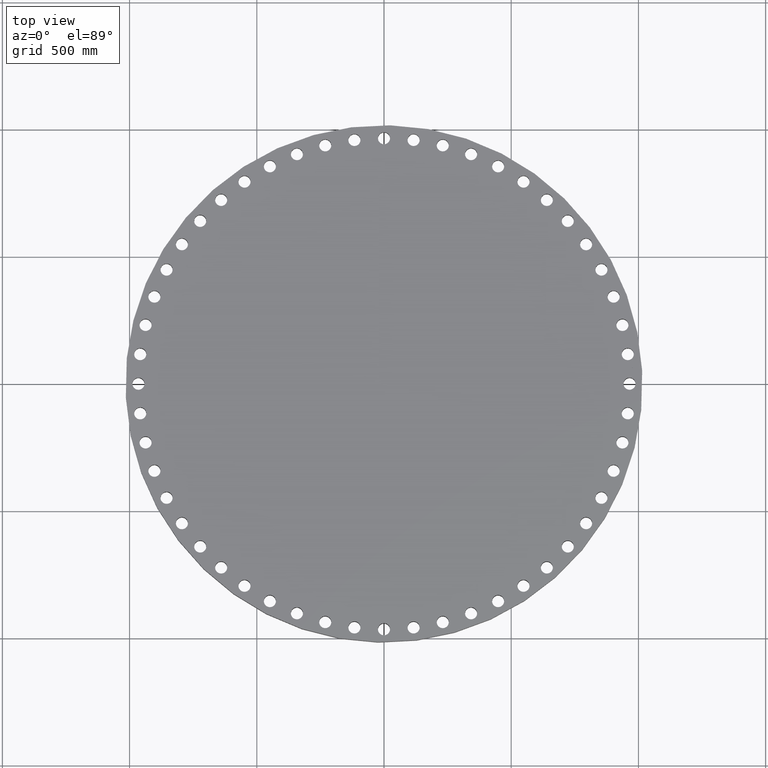
[diagram: clean part render]
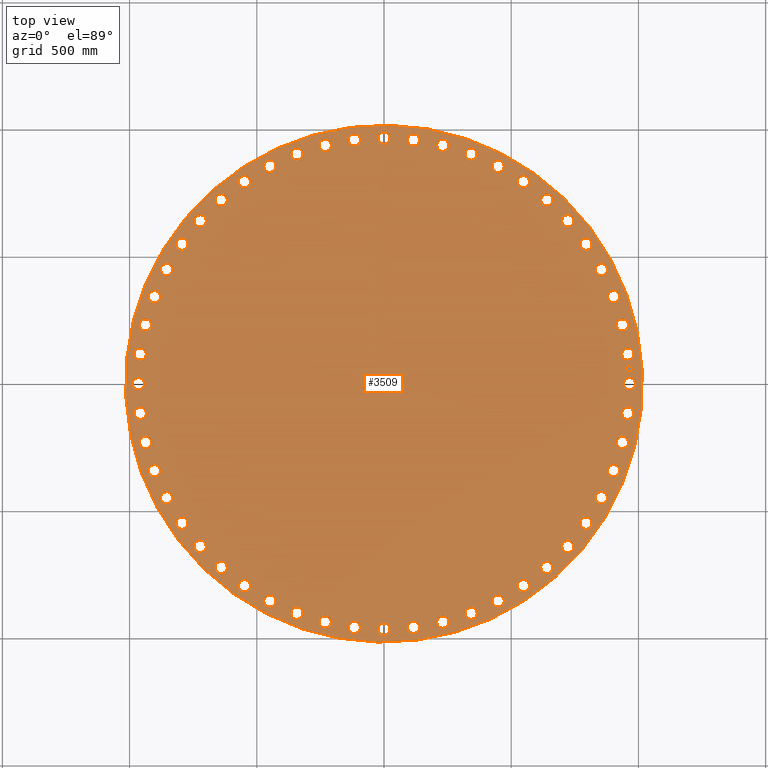
[diagram: same view with one face highlighted and labeled with its STEP entity id]
A machine part, top view. The second image highlights one B-rep face of the part: STEP entity #3509.
In plain terms, the highlighted planar face has unit normal (0, 0, 1).
Its self-contained STEP definition (entity closure, byte-faithful):
#65=AXIS2_PLACEMENT_3D('Circle Axis2P3D',#63,#64,$) ;
#82=AXIS2_PLACEMENT_3D('Circle Axis2P3D',#80,#81,$) ;
#108=AXIS2_PLACEMENT_3D('Circle Axis2P3D',#106,#107,$) ;
#134=AXIS2_PLACEMENT_3D('Circle Axis2P3D',#132,#133,$) ;
#1102=AXIS2_PLACEMENT_3D('Circle Axis2P3D',#1100,#1101,$) ;
#1114=AXIS2_PLACEMENT_3D('Circle Axis2P3D',#1112,#1113,$) ;
#1145=AXIS2_PLACEMENT_3D('Circle Axis2P3D',#1143,#1144,$) ;
#1157=AXIS2_PLACEMENT_3D('Circle Axis2P3D',#1155,#1156,$) ;
#1188=AXIS2_PLACEMENT_3D('Circle Axis2P3D',#1186,#1187,$) ;
#1200=AXIS2_PLACEMENT_3D('Circle Axis2P3D',#1198,#1199,$) ;
#1231=AXIS2_PLACEMENT_3D('Circle Axis2P3D',#1229,#1230,$) ;
#1243=AXIS2_PLACEMENT_3D('Circle Axis2P3D',#1241,#1242,$) ;
#1274=AXIS2_PLACEMENT_3D('Circle Axis2P3D',#1272,#1273,$) ;
#1286=AXIS2_PLACEMENT_3D('Circle Axis2P3D',#1284,#1285,$) ;
#1317=AXIS2_PLACEMENT_3D('Circle Axis2P3D',#1315,#1316,$) ;
#1329=AXIS2_PLACEMENT_3D('Circle Axis2P3D',#1327,#1328,$) ;
#1360=AXIS2_PLACEMENT_3D('Circle Axis2P3D',#1358,#1359,$) ;
#1372=AXIS2_PLACEMENT_3D('Circle Axis2P3D',#1370,#1371,$) ;
#1403=AXIS2_PLACEMENT_3D('Circle Axis2P3D',#1401,#1402,$) ;
#1415=AXIS2_PLACEMENT_3D('Circle Axis2P3D',#1413,#1414,$) ;
#1446=AXIS2_PLACEMENT_3D('Circle Axis2P3D',#1444,#1445,$) ;
#1458=AXIS2_PLACEMENT_3D('Circle Axis2P3D',#1456,#1457,$) ;
#1489=AXIS2_PLACEMENT_3D('Circle Axis2P3D',#1487,#1488,$) ;
#1501=AXIS2_PLACEMENT_3D('Circle Axis2P3D',#1499,#1500,$) ;
#1532=AXIS2_PLACEMENT_3D('Circle Axis2P3D',#1530,#1531,$) ;
#1544=AXIS2_PLACEMENT_3D('Circle Axis2P3D',#1542,#1543,$) ;
#1575=AXIS2_PLACEMENT_3D('Circle Axis2P3D',#1573,#1574,$) ;
#1587=AXIS2_PLACEMENT_3D('Circle Axis2P3D',#1585,#1586,$) ;
#1618=AXIS2_PLACEMENT_3D('Circle Axis2P3D',#1616,#1617,$) ;
#1630=AXIS2_PLACEMENT_3D('Circle Axis2P3D',#1628,#1629,$) ;
#1661=AXIS2_PLACEMENT_3D('Circle Axis2P3D',#1659,#1660,$) ;
#1673=AXIS2_PLACEMENT_3D('Circle Axis2P3D',#1671,#1672,$) ;
#1704=AXIS2_PLACEMENT_3D('Circle Axis2P3D',#1702,#1703,$) ;
#1716=AXIS2_PLACEMENT_3D('Circle Axis2P3D',#1714,#1715,$) ;
#1747=AXIS2_PLACEMENT_3D('Circle Axis2P3D',#1745,#1746,$) ;
#1759=AXIS2_PLACEMENT_3D('Circle Axis2P3D',#1757,#1758,$) ;
#1790=AXIS2_PLACEMENT_3D('Circle Axis2P3D',#1788,#1789,$) ;
#1802=AXIS2_PLACEMENT_3D('Circle Axis2P3D',#1800,#1801,$) ;
#1833=AXIS2_PLACEMENT_3D('Circle Axis2P3D',#1831,#1832,$) ;
#1845=AXIS2_PLACEMENT_3D('Circle Axis2P3D',#1843,#1844,$) ;
#1876=AXIS2_PLACEMENT_3D('Circle Axis2P3D',#1874,#1875,$) ;
#1888=AXIS2_PLACEMENT_3D('Circle Axis2P3D',#1886,#1887,$) ;
#1919=AXIS2_PLACEMENT_3D('Circle Axis2P3D',#1917,#1918,$) ;
#1931=AXIS2_PLACEMENT_3D('Circle Axis2P3D',#1929,#1930,$) ;
#1962=AXIS2_PLACEMENT_3D('Circle Axis2P3D',#1960,#1961,$) ;
#1974=AXIS2_PLACEMENT_3D('Circle Axis2P3D',#1972,#1973,$) ;
#2005=AXIS2_PLACEMENT_3D('Circle Axis2P3D',#2003,#2004,$) ;
#2017=AXIS2_PLACEMENT_3D('Circle Axis2P3D',#2015,#2016,$) ;
#2048=AXIS2_PLACEMENT_3D('Circle Axis2P3D',#2046,#2047,$) ;
#2060=AXIS2_PLACEMENT_3D('Circle Axis2P3D',#2058,#2059,$) ;
#2091=AXIS2_PLACEMENT_3D('Circle Axis2P3D',#2089,#2090,$) ;
#2103=AXIS2_PLACEMENT_3D('Circle Axis2P3D',#2101,#2102,$) ;
#2134=AXIS2_PLACEMENT_3D('Circle Axis2P3D',#2132,#2133,$) ;
#2146=AXIS2_PLACEMENT_3D('Circle Axis2P3D',#2144,#2145,$) ;
#2177=AXIS2_PLACEMENT_3D('Circle Axis2P3D',#2175,#2176,$) ;
#2189=AXIS2_PLACEMENT_3D('Circle Axis2P3D',#2187,#2188,$) ;
#2220=AXIS2_PLACEMENT_3D('Circle Axis2P3D',#2218,#2219,$) ;
#2232=AXIS2_PLACEMENT_3D('Circle Axis2P3D',#2230,#2231,$) ;
#2263=AXIS2_PLACEMENT_3D('Circle Axis2P3D',#2261,#2262,$) ;
#2275=AXIS2_PLACEMENT_3D('Circle Axis2P3D',#2273,#2274,$) ;
#2306=AXIS2_PLACEMENT_3D('Circle Axis2P3D',#2304,#2305,$) ;
#2318=AXIS2_PLACEMENT_3D('Circle Axis2P3D',#2316,#2317,$) ;
#2349=AXIS2_PLACEMENT_3D('Circle Axis2P3D',#2347,#2348,$) ;
#2361=AXIS2_PLACEMENT_3D('Circle Axis2P3D',#2359,#2360,$) ;
#2392=AXIS2_PLACEMENT_3D('Circle Axis2P3D',#2390,#2391,$) ;
#2404=AXIS2_PLACEMENT_3D('Circle Axis2P3D',#2402,#2403,$) ;
#2435=AXIS2_PLACEMENT_3D('Circle Axis2P3D',#2433,#2434,$) ;
#2447=AXIS2_PLACEMENT_3D('Circle Axis2P3D',#2445,#2446,$) ;
#2478=AXIS2_PLACEMENT_3D('Circle Axis2P3D',#2476,#2477,$) ;
#2490=AXIS2_PLACEMENT_3D('Circle Axis2P3D',#2488,#2489,$) ;
#2521=AXIS2_PLACEMENT_3D('Circle Axis2P3D',#2519,#2520,$) ;
#2533=AXIS2_PLACEMENT_3D('Circle Axis2P3D',#2531,#2532,$) ;
#2564=AXIS2_PLACEMENT_3D('Circle Axis2P3D',#2562,#2563,$) ;
#2576=AXIS2_PLACEMENT_3D('Circle Axis2P3D',#2574,#2575,$) ;
#2607=AXIS2_PLACEMENT_3D('Circle Axis2P3D',#2605,#2606,$) ;
#2619=AXIS2_PLACEMENT_3D('Circle Axis2P3D',#2617,#2618,$) ;
#2650=AXIS2_PLACEMENT_3D('Circle Axis2P3D',#2648,#2649,$) ;
#2662=AXIS2_PLACEMENT_3D('Circle Axis2P3D',#2660,#2661,$) ;
#2693=AXIS2_PLACEMENT_3D('Circle Axis2P3D',#2691,#2692,$) ;
#2705=AXIS2_PLACEMENT_3D('Circle Axis2P3D',#2703,#2704,$) ;
#2736=AXIS2_PLACEMENT_3D('Circle Axis2P3D',#2734,#2735,$) ;
#2748=AXIS2_PLACEMENT_3D('Circle Axis2P3D',#2746,#2747,$) ;
#2779=AXIS2_PLACEMENT_3D('Circle Axis2P3D',#2777,#2778,$) ;
#2791=AXIS2_PLACEMENT_3D('Circle Axis2P3D',#2789,#2790,$) ;
#2822=AXIS2_PLACEMENT_3D('Circle Axis2P3D',#2820,#2821,$) ;
#2834=AXIS2_PLACEMENT_3D('Circle Axis2P3D',#2832,#2833,$) ;
#2865=AXIS2_PLACEMENT_3D('Circle Axis2P3D',#2863,#2864,$) ;
#2877=AXIS2_PLACEMENT_3D('Circle Axis2P3D',#2875,#2876,$) ;
#2908=AXIS2_PLACEMENT_3D('Circle Axis2P3D',#2906,#2907,$) ;
#2920=AXIS2_PLACEMENT_3D('Circle Axis2P3D',#2918,#2919,$) ;
#2951=AXIS2_PLACEMENT_3D('Circle Axis2P3D',#2949,#2950,$) ;
#2963=AXIS2_PLACEMENT_3D('Circle Axis2P3D',#2961,#2962,$) ;
#2994=AXIS2_PLACEMENT_3D('Circle Axis2P3D',#2992,#2993,$) ;
#3006=AXIS2_PLACEMENT_3D('Circle Axis2P3D',#3004,#3005,$) ;
#3037=AXIS2_PLACEMENT_3D('Circle Axis2P3D',#3035,#3036,$) ;
#3049=AXIS2_PLACEMENT_3D('Circle Axis2P3D',#3047,#3048,$) ;
#3080=AXIS2_PLACEMENT_3D('Circle Axis2P3D',#3078,#3079,$) ;
#3092=AXIS2_PLACEMENT_3D('Circle Axis2P3D',#3090,#3091,$) ;
#3123=AXIS2_PLACEMENT_3D('Circle Axis2P3D',#3121,#3122,$) ;
#3135=AXIS2_PLACEMENT_3D('Circle Axis2P3D',#3133,#3134,$) ;
#3166=AXIS2_PLACEMENT_3D('Circle Axis2P3D',#3164,#3165,$) ;
#3178=AXIS2_PLACEMENT_3D('Circle Axis2P3D',#3176,#3177,$) ;
#3209=AXIS2_PLACEMENT_3D('Circle Axis2P3D',#3207,#3208,$) ;
#3221=AXIS2_PLACEMENT_3D('Circle Axis2P3D',#3219,#3220,$) ;
#3252=AXIS2_PLACEMENT_3D('Circle Axis2P3D',#3250,#3251,$) ;
#3264=AXIS2_PLACEMENT_3D('Circle Axis2P3D',#3262,#3263,$) ;
#3277=AXIS2_PLACEMENT_3D('Plane Axis2P3D',#3274,#3275,#3276) ;
#3493=AXIS2_PLACEMENT_3D('Circle Axis2P3D',#3491,#3492,$) ;
#3502=AXIS2_PLACEMENT_3D('Circle Axis2P3D',#3500,#3501,$) ;
#46=CARTESIAN_POINT('Vertex',(37.1772663484,0.449461442443,5.60100000002)) ;
#60=CARTESIAN_POINT('Vertex',(38.8227336519,-0.449461442443,5.60100000002)) ;
#63=CARTESIAN_POINT('Axis2P3D Location',(38.0000000002,0.,5.60100000002)) ;
#80=CARTESIAN_POINT('Axis2P3D Location',(38.0000000002,0.,5.60100000002)) ;
#103=CARTESIAN_POINT('Vertex',(35.1033024758,19.1770215442,5.60100000002)) ;
#106=CARTESIAN_POINT('Axis2P3D Location',(0.,0.,5.60100000002)) ;
#110=CARTESIAN_POINT('Vertex',(-35.1033024758,-19.1770215442,5.60100000002)) ;
#132=CARTESIAN_POINT('Axis2P3D Location',(0.,0.,5.60100000002)) ;
#1090=CARTESIAN_POINT('Vertex',(36.8520256286,4.92740862908,5.60100000002)) ;
#1097=CARTESIAN_POINT('Vertex',(38.5938488032,4.23337907036,5.60100000002)) ;
#1100=CARTESIAN_POINT('Axis2P3D Location',(37.7229372159,4.58039384972,5.60100000002)) ;
#1112=CARTESIAN_POINT('Axis2P3D Location',(37.7229372159,4.58039384972,5.60100000002)) ;
#1133=CARTESIAN_POINT('Vertex',(35.9893993916,9.33350310235,5.60100000002)) ;
#1140=CARTESIAN_POINT('Vertex',(37.8021787331,8.85448738358,5.60100000002)) ;
#1143=CARTESIAN_POINT('Axis2P3D Location',(36.8957890623,9.09399524296,5.60100000002)) ;
#1155=CARTESIAN_POINT('Axis2P3D Location',(36.8957890623,9.09399524296,5.60100000002)) ;
#1176=CARTESIAN_POINT('Vertex',(34.6019666703,13.6034940832,5.60100000002)) ;
#1183=CARTESIAN_POINT('Vertex',(36.459267774,13.3464773322,5.60100000002)) ;
#1186=CARTESIAN_POINT('Axis2P3D Location',(35.5306172222,13.4749857077,5.60100000002)) ;
#1198=CARTESIAN_POINT('Axis2P3D Location',(35.5306172222,13.4749857077,5.60100000002)) ;
#1219=CARTESIAN_POINT('Vertex',(32.7099593582,17.6751154878,5.60100000002)) ;
#1226=CARTESIAN_POINT('Vertex',(34.5846985917,17.6438455876,5.60100000002)) ;
#1229=CARTESIAN_POINT('Axis2P3D Location',(33.647328975,17.6594805377,5.60100000002)) ;
#1241=CARTESIAN_POINT('Axis2P3D Location',(33.647328975,17.6594805377,5.60100000002)) ;
#1262=CARTESIAN_POINT('Vertex',(30.3409671823,21.4889939078,5.60100000002)) ;
#1269=CARTESIAN_POINT('Vertex',(32.2058066259,21.6839268439,5.60100000002)) ;
#1272=CARTESIAN_POINT('Axis2P3D Location',(31.2733869041,21.5864603759,5.60100000002)) ;
#1284=CARTESIAN_POINT('Axis2P3D Location',(31.2733869041,21.5864603759,5.60100000002)) ;
#1305=CARTESIAN_POINT('Vertex',(27.5295353829,24.9895144076,5.60100000002)) ;
#1312=CARTESIAN_POINT('Vertex',(29.3572814783,25.4078076189,5.60100000002)) ;
#1315=CARTESIAN_POINT('Axis2P3D Location',(28.4434084306,25.1986610133,5.60100000002)) ;
#1327=CARTESIAN_POINT('Axis2P3D Location',(28.4434084306,25.1986610133,5.60100000002)) ;
#1348=CARTESIAN_POINT('Vertex',(24.3166609665,28.1256315159,5.60100000002)) ;
#1355=CARTESIAN_POINT('Vertex',(26.08066106,28.7611853454,5.60100000002)) ;
#1358=CARTESIAN_POINT('Axis2P3D Location',(25.1986610133,28.4434084306,5.60100000002)) ;
#1370=CARTESIAN_POINT('Axis2P3D Location',(25.1986610133,28.4434084306,5.60100000002)) ;
#1391=CARTESIAN_POINT('Vertex',(20.7491948769,30.8516135832,5.60100000002)) ;
#1398=CARTESIAN_POINT('Vertex',(22.4237258749,31.695160225,5.60100000002)) ;
#1401=CARTESIAN_POINT('Axis2P3D Location',(21.5864603759,31.2733869041,5.60100000002)) ;
#1413=CARTESIAN_POINT('Axis2P3D Location',(21.5864603759,31.2733869041,5.60100000002)) ;
#1434=CARTESIAN_POINT('Vertex',(16.8791588028,33.1277096527,5.60100000002)) ;
#1441=CARTESIAN_POINT('Vertex',(18.4398022726,34.1669482972,5.60100000002)) ;
#1444=CARTESIAN_POINT('Axis2P3D Location',(17.6594805377,33.647328975,5.60100000002)) ;
#1456=CARTESIAN_POINT('Axis2P3D Location',(17.6594805377,33.647328975,5.60100000002)) ;
#1477=CARTESIAN_POINT('Vertex',(12.7629865849,34.9207291184,5.60100000002)) ;
#1484=CARTESIAN_POINT('Vertex',(14.1869848305,36.140505326,5.60100000002)) ;
#1487=CARTESIAN_POINT('Axis2P3D Location',(13.4749857077,35.5306172222,5.60100000002)) ;
#1499=CARTESIAN_POINT('Axis2P3D Location',(13.4749857077,35.5306172222,5.60100000002)) ;
#1520=CARTESIAN_POINT('Vertex',(8.46070128277,36.2045257189,5.60100000002)) ;
#1527=CARTESIAN_POINT('Vertex',(9.72728920316,37.5870524058,5.60100000002)) ;
#1530=CARTESIAN_POINT('Axis2P3D Location',(9.09399524296,36.8957890623,5.60100000002)) ;
#1542=CARTESIAN_POINT('Axis2P3D Location',(9.09399524296,36.8957890623,5.60100000002)) ;
#1563=CARTESIAN_POINT('Vertex',(4.03503990412,36.9603788089,5.60100000002)) ;
#1570=CARTESIAN_POINT('Vertex',(5.12574779532,38.4854956228,5.60100000002)) ;
#1573=CARTESIAN_POINT('Axis2P3D Location',(4.58039384972,37.7229372159,5.60100000002)) ;
#1585=CARTESIAN_POINT('Axis2P3D Location',(4.58039384972,37.7229372159,5.60100000002)) ;
#1606=CARTESIAN_POINT('Vertex',(-0.449461442443,37.1772663484,5.60100000002)) ;
#1613=CARTESIAN_POINT('Vertex',(0.449461442443,38.8227336519,5.60100000002)) ;
#1616=CARTESIAN_POINT('Axis2P3D Location',(6.28866415275E-015,38.0000000002,5.60100000002)) ;
#1628=CARTESIAN_POINT('Axis2P3D Location',(6.28866415275E-015,38.0000000002,5.60100000002)) ;
#1649=CARTESIAN_POINT('Vertex',(-4.92740862908,36.8520256286,5.60100000002)) ;
#1656=CARTESIAN_POINT('Vertex',(-4.23337907036,38.5938488032,5.60100000002)) ;
#1659=CARTESIAN_POINT('Axis2P3D Location',(-4.58039384972,37.7229372159,5.60100000002)) ;
#1671=CARTESIAN_POINT('Axis2P3D Location',(-4.58039384972,37.7229372159,5.60100000002)) ;
#1692=CARTESIAN_POINT('Vertex',(-9.33350310235,35.9893993916,5.60100000002)) ;
#1699=CARTESIAN_POINT('Vertex',(-8.85448738358,37.8021787331,5.60100000002)) ;
#1702=CARTESIAN_POINT('Axis2P3D Location',(-9.09399524296,36.8957890623,5.60100000002)) ;
#1714=CARTESIAN_POINT('Axis2P3D Location',(-9.09399524296,36.8957890623,5.60100000002)) ;
#1735=CARTESIAN_POINT('Vertex',(-13.6034940832,34.6019666703,5.60100000002)) ;
#1742=CARTESIAN_POINT('Vertex',(-13.3464773322,36.459267774,5.60100000002)) ;
#1745=CARTESIAN_POINT('Axis2P3D Location',(-13.4749857077,35.5306172222,5.60100000002)) ;
#1757=CARTESIAN_POINT('Axis2P3D Location',(-13.4749857077,35.5306172222,5.60100000002)) ;
#1778=CARTESIAN_POINT('Vertex',(-17.6751154878,32.7099593582,5.60100000002)) ;
#1785=CARTESIAN_POINT('Vertex',(-17.6438455876,34.5846985917,5.60100000002)) ;
#1788=CARTESIAN_POINT('Axis2P3D Location',(-17.6594805377,33.647328975,5.60100000002)) ;
#1800=CARTESIAN_POINT('Axis2P3D Location',(-17.6594805377,33.647328975,5.60100000002)) ;
#1821=CARTESIAN_POINT('Vertex',(-21.4889939078,30.3409671823,5.60100000002)) ;
#1828=CARTESIAN_POINT('Vertex',(-21.6839268439,32.2058066259,5.60100000002)) ;
#1831=CARTESIAN_POINT('Axis2P3D Location',(-21.5864603759,31.2733869041,5.60100000002)) ;
#1843=CARTESIAN_POINT('Axis2P3D Location',(-21.5864603759,31.2733869041,5.60100000002)) ;
#1864=CARTESIAN_POINT('Vertex',(-24.9895144076,27.5295353829,5.60100000002)) ;
#1871=CARTESIAN_POINT('Vertex',(-25.4078076189,29.3572814783,5.60100000002)) ;
#1874=CARTESIAN_POINT('Axis2P3D Location',(-25.1986610133,28.4434084306,5.60100000002)) ;
#1886=CARTESIAN_POINT('Axis2P3D Location',(-25.1986610133,28.4434084306,5.60100000002)) ;
#1907=CARTESIAN_POINT('Vertex',(-28.1256315159,24.3166609665,5.60100000002)) ;
#1914=CARTESIAN_POINT('Vertex',(-28.7611853454,26.08066106,5.60100000002)) ;
#1917=CARTESIAN_POINT('Axis2P3D Location',(-28.4434084306,25.1986610133,5.60100000002)) ;
#1929=CARTESIAN_POINT('Axis2P3D Location',(-28.4434084306,25.1986610133,5.60100000002)) ;
#1950=CARTESIAN_POINT('Vertex',(-30.8516135832,20.7491948769,5.60100000002)) ;
#1957=CARTESIAN_POINT('Vertex',(-31.695160225,22.4237258749,5.60100000002)) ;
#1960=CARTESIAN_POINT('Axis2P3D Location',(-31.2733869041,21.5864603759,5.60100000002)) ;
#1972=CARTESIAN_POINT('Axis2P3D Location',(-31.2733869041,21.5864603759,5.60100000002)) ;
#1993=CARTESIAN_POINT('Vertex',(-33.1277096527,16.8791588028,5.60100000002)) ;
#2000=CARTESIAN_POINT('Vertex',(-34.1669482972,18.4398022726,5.60100000002)) ;
#2003=CARTESIAN_POINT('Axis2P3D Location',(-33.647328975,17.6594805377,5.60100000002)) ;
#2015=CARTESIAN_POINT('Axis2P3D Location',(-33.647328975,17.6594805377,5.60100000002)) ;
#2036=CARTESIAN_POINT('Vertex',(-34.9207291184,12.7629865849,5.60100000002)) ;
#2043=CARTESIAN_POINT('Vertex',(-36.140505326,14.1869848305,5.60100000002)) ;
#2046=CARTESIAN_POINT('Axis2P3D Location',(-35.5306172222,13.4749857077,5.60100000002)) ;
#2058=CARTESIAN_POINT('Axis2P3D Location',(-35.5306172222,13.4749857077,5.60100000002)) ;
#2079=CARTESIAN_POINT('Vertex',(-36.2045257189,8.46070128277,5.60100000002)) ;
#2086=CARTESIAN_POINT('Vertex',(-37.5870524058,9.72728920316,5.60100000002)) ;
#2089=CARTESIAN_POINT('Axis2P3D Location',(-36.8957890623,9.09399524296,5.60100000002)) ;
#2101=CARTESIAN_POINT('Axis2P3D Location',(-36.8957890623,9.09399524296,5.60100000002)) ;
#2122=CARTESIAN_POINT('Vertex',(-36.9603788089,4.03503990412,5.60100000002)) ;
#2129=CARTESIAN_POINT('Vertex',(-38.4854956228,5.12574779532,5.60100000002)) ;
#2132=CARTESIAN_POINT('Axis2P3D Location',(-37.7229372159,4.58039384972,5.60100000002)) ;
#2144=CARTESIAN_POINT('Axis2P3D Location',(-37.7229372159,4.58039384972,5.60100000002)) ;
#2165=CARTESIAN_POINT('Vertex',(-37.1772663484,-0.449461442443,5.60100000002)) ;
#2172=CARTESIAN_POINT('Vertex',(-38.8227336519,0.449461442443,5.60100000002)) ;
#2175=CARTESIAN_POINT('Axis2P3D Location',(-38.0000000002,2.15290478111E-014,5.60100000002)) ;
#2187=CARTESIAN_POINT('Axis2P3D Location',(-38.0000000002,2.15290478111E-014,5.60100000002)) ;
#2208=CARTESIAN_POINT('Vertex',(-36.8520256286,-4.92740862908,5.60100000002)) ;
#2215=CARTESIAN_POINT('Vertex',(-38.5938488032,-4.23337907036,5.60100000002)) ;
#2218=CARTESIAN_POINT('Axis2P3D Location',(-37.7229372159,-4.58039384972,5.60100000002)) ;
#2230=CARTESIAN_POINT('Axis2P3D Location',(-37.7229372159,-4.58039384972,5.60100000002)) ;
#2251=CARTESIAN_POINT('Vertex',(-35.9893993916,-9.33350310235,5.60100000002)) ;
#2258=CARTESIAN_POINT('Vertex',(-37.8021787331,-8.85448738358,5.60100000002)) ;
#2261=CARTESIAN_POINT('Axis2P3D Location',(-36.8957890623,-9.09399524296,5.60100000002)) ;
#2273=CARTESIAN_POINT('Axis2P3D Location',(-36.8957890623,-9.09399524296,5.60100000002)) ;
#2294=CARTESIAN_POINT('Vertex',(-34.6019666703,-13.6034940832,5.60100000002)) ;
#2301=CARTESIAN_POINT('Vertex',(-36.459267774,-13.3464773322,5.60100000002)) ;
#2304=CARTESIAN_POINT('Axis2P3D Location',(-35.5306172222,-13.4749857077,5.60100000002)) ;
#2316=CARTESIAN_POINT('Axis2P3D Location',(-35.5306172222,-13.4749857077,5.60100000002)) ;
#2337=CARTESIAN_POINT('Vertex',(-32.7099593582,-17.6751154878,5.60100000002)) ;
#2344=CARTESIAN_POINT('Vertex',(-34.5846985917,-17.6438455876,5.60100000002)) ;
#2347=CARTESIAN_POINT('Axis2P3D Location',(-33.647328975,-17.6594805377,5.60100000002)) ;
#2359=CARTESIAN_POINT('Axis2P3D Location',(-33.647328975,-17.6594805377,5.60100000002)) ;
#2380=CARTESIAN_POINT('Vertex',(-30.3409671823,-21.4889939078,5.60100000002)) ;
#2387=CARTESIAN_POINT('Vertex',(-32.2058066259,-21.6839268439,5.60100000002)) ;
#2390=CARTESIAN_POINT('Axis2P3D Location',(-31.2733869041,-21.5864603759,5.60100000002)) ;
#2402=CARTESIAN_POINT('Axis2P3D Location',(-31.2733869041,-21.5864603759,5.60100000002)) ;
#2423=CARTESIAN_POINT('Vertex',(-27.5295353829,-24.9895144076,5.60100000002)) ;
#2430=CARTESIAN_POINT('Vertex',(-29.3572814783,-25.4078076189,5.60100000002)) ;
#2433=CARTESIAN_POINT('Axis2P3D Location',(-28.4434084306,-25.1986610133,5.60100000002)) ;
#2445=CARTESIAN_POINT('Axis2P3D Location',(-28.4434084306,-25.1986610133,5.60100000002)) ;
#2466=CARTESIAN_POINT('Vertex',(-24.3166609665,-28.1256315159,5.60100000002)) ;
#2473=CARTESIAN_POINT('Vertex',(-26.08066106,-28.7611853454,5.60100000002)) ;
#2476=CARTESIAN_POINT('Axis2P3D Location',(-25.1986610133,-28.4434084306,5.60100000002)) ;
#2488=CARTESIAN_POINT('Axis2P3D Location',(-25.1986610133,-28.4434084306,5.60100000002)) ;
#2509=CARTESIAN_POINT('Vertex',(-20.7491948769,-30.8516135832,5.60100000002)) ;
#2516=CARTESIAN_POINT('Vertex',(-22.4237258749,-31.695160225,5.60100000002)) ;
#2519=CARTESIAN_POINT('Axis2P3D Location',(-21.5864603759,-31.2733869041,5.60100000002)) ;
#2531=CARTESIAN_POINT('Axis2P3D Location',(-21.5864603759,-31.2733869041,5.60100000002)) ;
#2552=CARTESIAN_POINT('Vertex',(-16.8791588028,-33.1277096527,5.60100000002)) ;
#2559=CARTESIAN_POINT('Vertex',(-18.4398022726,-34.1669482972,5.60100000002)) ;
#2562=CARTESIAN_POINT('Axis2P3D Location',(-17.6594805377,-33.647328975,5.60100000002)) ;
#2574=CARTESIAN_POINT('Axis2P3D Location',(-17.6594805377,-33.647328975,5.60100000002)) ;
#2595=CARTESIAN_POINT('Vertex',(-12.7629865849,-34.9207291184,5.60100000002)) ;
#2602=CARTESIAN_POINT('Vertex',(-14.1869848305,-36.140505326,5.60100000002)) ;
#2605=CARTESIAN_POINT('Axis2P3D Location',(-13.4749857077,-35.5306172222,5.60100000002)) ;
#2617=CARTESIAN_POINT('Axis2P3D Location',(-13.4749857077,-35.5306172222,5.60100000002)) ;
#2638=CARTESIAN_POINT('Vertex',(-8.46070128277,-36.2045257189,5.60100000002)) ;
#2645=CARTESIAN_POINT('Vertex',(-9.72728920316,-37.5870524058,5.60100000002)) ;
#2648=CARTESIAN_POINT('Axis2P3D Location',(-9.09399524296,-36.8957890623,5.60100000002)) ;
#2660=CARTESIAN_POINT('Axis2P3D Location',(-9.09399524296,-36.8957890623,5.60100000002)) ;
#2681=CARTESIAN_POINT('Vertex',(-4.03503990412,-36.9603788089,5.60100000002)) ;
#2688=CARTESIAN_POINT('Vertex',(-5.12574779532,-38.4854956228,5.60100000002)) ;
#2691=CARTESIAN_POINT('Axis2P3D Location',(-4.58039384972,-37.7229372159,5.60100000002)) ;
#2703=CARTESIAN_POINT('Axis2P3D Location',(-4.58039384972,-37.7229372159,5.60100000002)) ;
#2724=CARTESIAN_POINT('Vertex',(0.449461442443,-37.1772663484,5.60100000002)) ;
#2731=CARTESIAN_POINT('Vertex',(-0.449461442443,-38.8227336519,5.60100000002)) ;
#2734=CARTESIAN_POINT('Axis2P3D Location',(-6.98048675517E-015,-38.0000000002,5.60100000002)) ;
#2746=CARTESIAN_POINT('Axis2P3D Location',(-6.98048675517E-015,-38.0000000002,5.60100000002)) ;
#2767=CARTESIAN_POINT('Vertex',(4.92740862908,-36.8520256286,5.60100000002)) ;
#2774=CARTESIAN_POINT('Vertex',(4.23337907036,-38.5938488032,5.60100000002)) ;
#2777=CARTESIAN_POINT('Axis2P3D Location',(4.58039384972,-37.7229372159,5.60100000002)) ;
#2789=CARTESIAN_POINT('Axis2P3D Location',(4.58039384972,-37.7229372159,5.60100000002)) ;
#2810=CARTESIAN_POINT('Vertex',(9.33350310235,-35.9893993916,5.60100000002)) ;
#2817=CARTESIAN_POINT('Vertex',(8.85448738358,-37.8021787331,5.60100000002)) ;
#2820=CARTESIAN_POINT('Axis2P3D Location',(9.09399524296,-36.8957890623,5.60100000002)) ;
#2832=CARTESIAN_POINT('Axis2P3D Location',(9.09399524296,-36.8957890623,5.60100000002)) ;
#2853=CARTESIAN_POINT('Vertex',(13.6034940832,-34.6019666703,5.60100000002)) ;
#2860=CARTESIAN_POINT('Vertex',(13.3464773322,-36.459267774,5.60100000002)) ;
#2863=CARTESIAN_POINT('Axis2P3D Location',(13.4749857077,-35.5306172222,5.60100000002)) ;
#2875=CARTESIAN_POINT('Axis2P3D Location',(13.4749857077,-35.5306172222,5.60100000002)) ;
#2896=CARTESIAN_POINT('Vertex',(17.6751154878,-32.7099593582,5.60100000002)) ;
#2903=CARTESIAN_POINT('Vertex',(17.6438455876,-34.5846985917,5.60100000002)) ;
#2906=CARTESIAN_POINT('Axis2P3D Location',(17.6594805377,-33.647328975,5.60100000002)) ;
#2918=CARTESIAN_POINT('Axis2P3D Location',(17.6594805377,-33.647328975,5.60100000002)) ;
#2939=CARTESIAN_POINT('Vertex',(21.4889939078,-30.3409671823,5.60100000002)) ;
#2946=CARTESIAN_POINT('Vertex',(21.6839268439,-32.2058066259,5.60100000002)) ;
#2949=CARTESIAN_POINT('Axis2P3D Location',(21.5864603759,-31.2733869041,5.60100000002)) ;
#2961=CARTESIAN_POINT('Axis2P3D Location',(21.5864603759,-31.2733869041,5.60100000002)) ;
#2982=CARTESIAN_POINT('Vertex',(24.9895144076,-27.5295353829,5.60100000002)) ;
#2989=CARTESIAN_POINT('Vertex',(25.4078076189,-29.3572814783,5.60100000002)) ;
#2992=CARTESIAN_POINT('Axis2P3D Location',(25.1986610133,-28.4434084306,5.60100000002)) ;
#3004=CARTESIAN_POINT('Axis2P3D Location',(25.1986610133,-28.4434084306,5.60100000002)) ;
#3025=CARTESIAN_POINT('Vertex',(28.1256315159,-24.3166609665,5.60100000002)) ;
#3032=CARTESIAN_POINT('Vertex',(28.7611853454,-26.08066106,5.60100000002)) ;
#3035=CARTESIAN_POINT('Axis2P3D Location',(28.4434084306,-25.1986610133,5.60100000002)) ;
#3047=CARTESIAN_POINT('Axis2P3D Location',(28.4434084306,-25.1986610133,5.60100000002)) ;
#3068=CARTESIAN_POINT('Vertex',(30.8516135832,-20.7491948769,5.60100000002)) ;
#3075=CARTESIAN_POINT('Vertex',(31.695160225,-22.4237258749,5.60100000002)) ;
#3078=CARTESIAN_POINT('Axis2P3D Location',(31.2733869041,-21.5864603759,5.60100000002)) ;
#3090=CARTESIAN_POINT('Axis2P3D Location',(31.2733869041,-21.5864603759,5.60100000002)) ;
#3111=CARTESIAN_POINT('Vertex',(33.1277096527,-16.8791588028,5.60100000002)) ;
#3118=CARTESIAN_POINT('Vertex',(34.1669482972,-18.4398022726,5.60100000002)) ;
#3121=CARTESIAN_POINT('Axis2P3D Location',(33.647328975,-17.6594805377,5.60100000002)) ;
#3133=CARTESIAN_POINT('Axis2P3D Location',(33.647328975,-17.6594805377,5.60100000002)) ;
#3154=CARTESIAN_POINT('Vertex',(34.9207291184,-12.7629865849,5.60100000002)) ;
#3161=CARTESIAN_POINT('Vertex',(36.140505326,-14.1869848305,5.60100000002)) ;
#3164=CARTESIAN_POINT('Axis2P3D Location',(35.5306172222,-13.4749857077,5.60100000002)) ;
#3176=CARTESIAN_POINT('Axis2P3D Location',(35.5306172222,-13.4749857077,5.60100000002)) ;
#3197=CARTESIAN_POINT('Vertex',(36.2045257189,-8.46070128277,5.60100000002)) ;
#3204=CARTESIAN_POINT('Vertex',(37.5870524058,-9.72728920316,5.60100000002)) ;
#3207=CARTESIAN_POINT('Axis2P3D Location',(36.8957890623,-9.09399524296,5.60100000002)) ;
#3219=CARTESIAN_POINT('Axis2P3D Location',(36.8957890623,-9.09399524296,5.60100000002)) ;
#3240=CARTESIAN_POINT('Vertex',(36.9603788089,-4.03503990412,5.60100000002)) ;
#3247=CARTESIAN_POINT('Vertex',(38.4854956228,-5.12574779532,5.60100000002)) ;
#3250=CARTESIAN_POINT('Axis2P3D Location',(37.7229372159,-4.58039384972,5.60100000002)) ;
#3262=CARTESIAN_POINT('Axis2P3D Location',(37.7229372159,-4.58039384972,5.60100000002)) ;
#3274=CARTESIAN_POINT('Axis2P3D Location',(40.0000000002,0.,5.60100000002)) ;
#3491=CARTESIAN_POINT('Axis2P3D Location',(37.9306710606,2.29438290206,5.60100000002)) ;
#3495=CARTESIAN_POINT('Vertex',(37.9004818122,2.79347067418,5.60100000002)) ;
#3497=CARTESIAN_POINT('Vertex',(37.960860309,1.79529512993,5.60100000002)) ;
#3500=CARTESIAN_POINT('Axis2P3D Location',(37.9306710606,2.29438290206,5.60100000002)) ;
#64=DIRECTION('Axis2P3D Direction',(0.,-0.,-0.0393700787402)) ;
#81=DIRECTION('Axis2P3D Direction',(0.,-0.,-0.0393700787402)) ;
#107=DIRECTION('Axis2P3D Direction',(0.,0.,0.0393700787402)) ;
#133=DIRECTION('Axis2P3D Direction',(0.,0.,0.0393700787402)) ;
#1101=DIRECTION('Axis2P3D Direction',(0.,0.,-0.0393700787402)) ;
#1113=DIRECTION('Axis2P3D Direction',(0.,0.,-0.0393700787402)) ;
#1144=DIRECTION('Axis2P3D Direction',(0.,0.,-0.0393700787402)) ;
#1156=DIRECTION('Axis2P3D Direction',(0.,0.,-0.0393700787402)) ;
#1187=DIRECTION('Axis2P3D Direction',(0.,0.,-0.0393700787402)) ;
#1199=DIRECTION('Axis2P3D Direction',(0.,0.,-0.0393700787402)) ;
#1230=DIRECTION('Axis2P3D Direction',(0.,0.,-0.0393700787402)) ;
#1242=DIRECTION('Axis2P3D Direction',(0.,0.,-0.0393700787402)) ;
#1273=DIRECTION('Axis2P3D Direction',(0.,0.,-0.0393700787402)) ;
#1285=DIRECTION('Axis2P3D Direction',(0.,0.,-0.0393700787402)) ;
#1316=DIRECTION('Axis2P3D Direction',(0.,0.,-0.0393700787402)) ;
#1328=DIRECTION('Axis2P3D Direction',(0.,0.,-0.0393700787402)) ;
#1359=DIRECTION('Axis2P3D Direction',(0.,0.,-0.0393700787402)) ;
#1371=DIRECTION('Axis2P3D Direction',(0.,0.,-0.0393700787402)) ;
#1402=DIRECTION('Axis2P3D Direction',(0.,0.,-0.0393700787402)) ;
#1414=DIRECTION('Axis2P3D Direction',(0.,0.,-0.0393700787402)) ;
#1445=DIRECTION('Axis2P3D Direction',(0.,0.,-0.0393700787402)) ;
#1457=DIRECTION('Axis2P3D Direction',(0.,0.,-0.0393700787402)) ;
#1488=DIRECTION('Axis2P3D Direction',(0.,0.,-0.0393700787402)) ;
#1500=DIRECTION('Axis2P3D Direction',(0.,0.,-0.0393700787402)) ;
#1531=DIRECTION('Axis2P3D Direction',(0.,0.,-0.0393700787402)) ;
#1543=DIRECTION('Axis2P3D Direction',(0.,0.,-0.0393700787402)) ;
#1574=DIRECTION('Axis2P3D Direction',(0.,0.,-0.0393700787402)) ;
#1586=DIRECTION('Axis2P3D Direction',(0.,0.,-0.0393700787402)) ;
#1617=DIRECTION('Axis2P3D Direction',(0.,0.,-0.0393700787402)) ;
#1629=DIRECTION('Axis2P3D Direction',(0.,0.,-0.0393700787402)) ;
#1660=DIRECTION('Axis2P3D Direction',(0.,0.,-0.0393700787402)) ;
#1672=DIRECTION('Axis2P3D Direction',(0.,0.,-0.0393700787402)) ;
#1703=DIRECTION('Axis2P3D Direction',(0.,0.,-0.0393700787402)) ;
#1715=DIRECTION('Axis2P3D Direction',(0.,0.,-0.0393700787402)) ;
#1746=DIRECTION('Axis2P3D Direction',(0.,0.,-0.0393700787402)) ;
#1758=DIRECTION('Axis2P3D Direction',(0.,0.,-0.0393700787402)) ;
#1789=DIRECTION('Axis2P3D Direction',(0.,0.,-0.0393700787402)) ;
#1801=DIRECTION('Axis2P3D Direction',(0.,0.,-0.0393700787402)) ;
#1832=DIRECTION('Axis2P3D Direction',(0.,0.,-0.0393700787402)) ;
#1844=DIRECTION('Axis2P3D Direction',(0.,0.,-0.0393700787402)) ;
#1875=DIRECTION('Axis2P3D Direction',(0.,0.,-0.0393700787402)) ;
#1887=DIRECTION('Axis2P3D Direction',(0.,0.,-0.0393700787402)) ;
#1918=DIRECTION('Axis2P3D Direction',(0.,0.,-0.0393700787402)) ;
#1930=DIRECTION('Axis2P3D Direction',(0.,0.,-0.0393700787402)) ;
#1961=DIRECTION('Axis2P3D Direction',(0.,0.,-0.0393700787402)) ;
#1973=DIRECTION('Axis2P3D Direction',(0.,0.,-0.0393700787402)) ;
#2004=DIRECTION('Axis2P3D Direction',(0.,0.,-0.0393700787402)) ;
#2016=DIRECTION('Axis2P3D Direction',(0.,0.,-0.0393700787402)) ;
#2047=DIRECTION('Axis2P3D Direction',(0.,0.,-0.0393700787402)) ;
#2059=DIRECTION('Axis2P3D Direction',(0.,0.,-0.0393700787402)) ;
#2090=DIRECTION('Axis2P3D Direction',(0.,0.,-0.0393700787402)) ;
#2102=DIRECTION('Axis2P3D Direction',(0.,0.,-0.0393700787402)) ;
#2133=DIRECTION('Axis2P3D Direction',(0.,0.,-0.0393700787402)) ;
#2145=DIRECTION('Axis2P3D Direction',(0.,0.,-0.0393700787402)) ;
#2176=DIRECTION('Axis2P3D Direction',(0.,0.,-0.0393700787402)) ;
#2188=DIRECTION('Axis2P3D Direction',(0.,0.,-0.0393700787402)) ;
#2219=DIRECTION('Axis2P3D Direction',(-0.,0.,-0.0393700787402)) ;
#2231=DIRECTION('Axis2P3D Direction',(-0.,0.,-0.0393700787402)) ;
#2262=DIRECTION('Axis2P3D Direction',(-0.,0.,-0.0393700787402)) ;
#2274=DIRECTION('Axis2P3D Direction',(-0.,0.,-0.0393700787402)) ;
#2305=DIRECTION('Axis2P3D Direction',(-0.,0.,-0.0393700787402)) ;
#2317=DIRECTION('Axis2P3D Direction',(-0.,0.,-0.0393700787402)) ;
#2348=DIRECTION('Axis2P3D Direction',(-0.,0.,-0.0393700787402)) ;
#2360=DIRECTION('Axis2P3D Direction',(-0.,0.,-0.0393700787402)) ;
#2391=DIRECTION('Axis2P3D Direction',(-0.,0.,-0.0393700787402)) ;
#2403=DIRECTION('Axis2P3D Direction',(-0.,0.,-0.0393700787402)) ;
#2434=DIRECTION('Axis2P3D Direction',(-0.,0.,-0.0393700787402)) ;
#2446=DIRECTION('Axis2P3D Direction',(-0.,0.,-0.0393700787402)) ;
#2477=DIRECTION('Axis2P3D Direction',(-0.,0.,-0.0393700787402)) ;
#2489=DIRECTION('Axis2P3D Direction',(-0.,0.,-0.0393700787402)) ;
#2520=DIRECTION('Axis2P3D Direction',(-0.,0.,-0.0393700787402)) ;
#2532=DIRECTION('Axis2P3D Direction',(-0.,0.,-0.0393700787402)) ;
#2563=DIRECTION('Axis2P3D Direction',(-0.,0.,-0.0393700787402)) ;
#2575=DIRECTION('Axis2P3D Direction',(-0.,0.,-0.0393700787402)) ;
#2606=DIRECTION('Axis2P3D Direction',(-0.,0.,-0.0393700787402)) ;
#2618=DIRECTION('Axis2P3D Direction',(-0.,0.,-0.0393700787402)) ;
#2649=DIRECTION('Axis2P3D Direction',(-0.,0.,-0.0393700787402)) ;
#2661=DIRECTION('Axis2P3D Direction',(-0.,0.,-0.0393700787402)) ;
#2692=DIRECTION('Axis2P3D Direction',(-0.,0.,-0.0393700787402)) ;
#2704=DIRECTION('Axis2P3D Direction',(-0.,0.,-0.0393700787402)) ;
#2735=DIRECTION('Axis2P3D Direction',(-0.,0.,-0.0393700787402)) ;
#2747=DIRECTION('Axis2P3D Direction',(-0.,0.,-0.0393700787402)) ;
#2778=DIRECTION('Axis2P3D Direction',(0.,-0.,-0.0393700787402)) ;
#2790=DIRECTION('Axis2P3D Direction',(0.,-0.,-0.0393700787402)) ;
#2821=DIRECTION('Axis2P3D Direction',(0.,-0.,-0.0393700787402)) ;
#2833=DIRECTION('Axis2P3D Direction',(0.,-0.,-0.0393700787402)) ;
#2864=DIRECTION('Axis2P3D Direction',(0.,-0.,-0.0393700787402)) ;
#2876=DIRECTION('Axis2P3D Direction',(0.,-0.,-0.0393700787402)) ;
#2907=DIRECTION('Axis2P3D Direction',(0.,-0.,-0.0393700787402)) ;
#2919=DIRECTION('Axis2P3D Direction',(0.,-0.,-0.0393700787402)) ;
#2950=DIRECTION('Axis2P3D Direction',(0.,-0.,-0.0393700787402)) ;
#2962=DIRECTION('Axis2P3D Direction',(0.,-0.,-0.0393700787402)) ;
#2993=DIRECTION('Axis2P3D Direction',(0.,-0.,-0.0393700787402)) ;
#3005=DIRECTION('Axis2P3D Direction',(0.,-0.,-0.0393700787402)) ;
#3036=DIRECTION('Axis2P3D Direction',(0.,-0.,-0.0393700787402)) ;
#3048=DIRECTION('Axis2P3D Direction',(0.,-0.,-0.0393700787402)) ;
#3079=DIRECTION('Axis2P3D Direction',(0.,-0.,-0.0393700787402)) ;
#3091=DIRECTION('Axis2P3D Direction',(0.,-0.,-0.0393700787402)) ;
#3122=DIRECTION('Axis2P3D Direction',(0.,-0.,-0.0393700787402)) ;
#3134=DIRECTION('Axis2P3D Direction',(0.,-0.,-0.0393700787402)) ;
#3165=DIRECTION('Axis2P3D Direction',(0.,-0.,-0.0393700787402)) ;
#3177=DIRECTION('Axis2P3D Direction',(0.,-0.,-0.0393700787402)) ;
#3208=DIRECTION('Axis2P3D Direction',(0.,-0.,-0.0393700787402)) ;
#3220=DIRECTION('Axis2P3D Direction',(0.,-0.,-0.0393700787402)) ;
#3251=DIRECTION('Axis2P3D Direction',(0.,-0.,-0.0393700787402)) ;
#3263=DIRECTION('Axis2P3D Direction',(0.,-0.,-0.0393700787402)) ;
#3275=DIRECTION('Axis2P3D Direction',(0.,0.,0.0393700787402)) ;
#3276=DIRECTION('Axis2P3D XDirection',(0.0393700787402,0.,0.)) ;
#3492=DIRECTION('Axis2P3D Direction',(0.,0.,0.0393700787402)) ;
#3501=DIRECTION('Axis2P3D Direction',(0.,0.,0.0393700787402)) ;
#3280=ORIENTED_EDGE('',*,*,#112,.T.) ;
#3281=ORIENTED_EDGE('',*,*,#136,.T.) ;
#3284=ORIENTED_EDGE('',*,*,#84,.F.) ;
#3285=ORIENTED_EDGE('',*,*,#67,.F.) ;
#3288=ORIENTED_EDGE('',*,*,#1104,.F.) ;
#3289=ORIENTED_EDGE('',*,*,#1116,.F.) ;
#3292=ORIENTED_EDGE('',*,*,#1147,.F.) ;
#3293=ORIENTED_EDGE('',*,*,#1159,.F.) ;
#3296=ORIENTED_EDGE('',*,*,#1190,.F.) ;
#3297=ORIENTED_EDGE('',*,*,#1202,.F.) ;
#3300=ORIENTED_EDGE('',*,*,#1233,.F.) ;
#3301=ORIENTED_EDGE('',*,*,#1245,.F.) ;
#3304=ORIENTED_EDGE('',*,*,#1276,.F.) ;
#3305=ORIENTED_EDGE('',*,*,#1288,.F.) ;
#3308=ORIENTED_EDGE('',*,*,#1319,.F.) ;
#3309=ORIENTED_EDGE('',*,*,#1331,.F.) ;
#3312=ORIENTED_EDGE('',*,*,#1362,.F.) ;
#3313=ORIENTED_EDGE('',*,*,#1374,.F.) ;
#3316=ORIENTED_EDGE('',*,*,#1405,.F.) ;
#3317=ORIENTED_EDGE('',*,*,#1417,.F.) ;
#3320=ORIENTED_EDGE('',*,*,#1448,.F.) ;
#3321=ORIENTED_EDGE('',*,*,#1460,.F.) ;
#3324=ORIENTED_EDGE('',*,*,#1491,.F.) ;
#3325=ORIENTED_EDGE('',*,*,#1503,.F.) ;
#3328=ORIENTED_EDGE('',*,*,#1534,.F.) ;
#3329=ORIENTED_EDGE('',*,*,#1546,.F.) ;
#3332=ORIENTED_EDGE('',*,*,#1577,.F.) ;
#3333=ORIENTED_EDGE('',*,*,#1589,.F.) ;
#3336=ORIENTED_EDGE('',*,*,#1620,.F.) ;
#3337=ORIENTED_EDGE('',*,*,#1632,.F.) ;
#3340=ORIENTED_EDGE('',*,*,#1663,.F.) ;
#3341=ORIENTED_EDGE('',*,*,#1675,.F.) ;
#3344=ORIENTED_EDGE('',*,*,#1706,.F.) ;
#3345=ORIENTED_EDGE('',*,*,#1718,.F.) ;
#3348=ORIENTED_EDGE('',*,*,#1749,.F.) ;
#3349=ORIENTED_EDGE('',*,*,#1761,.F.) ;
#3352=ORIENTED_EDGE('',*,*,#1792,.F.) ;
#3353=ORIENTED_EDGE('',*,*,#1804,.F.) ;
#3356=ORIENTED_EDGE('',*,*,#1835,.F.) ;
#3357=ORIENTED_EDGE('',*,*,#1847,.F.) ;
#3360=ORIENTED_EDGE('',*,*,#1878,.F.) ;
#3361=ORIENTED_EDGE('',*,*,#1890,.F.) ;
#3364=ORIENTED_EDGE('',*,*,#1921,.F.) ;
#3365=ORIENTED_EDGE('',*,*,#1933,.F.) ;
#3368=ORIENTED_EDGE('',*,*,#1964,.F.) ;
#3369=ORIENTED_EDGE('',*,*,#1976,.F.) ;
#3372=ORIENTED_EDGE('',*,*,#2007,.F.) ;
#3373=ORIENTED_EDGE('',*,*,#2019,.F.) ;
#3376=ORIENTED_EDGE('',*,*,#2050,.F.) ;
#3377=ORIENTED_EDGE('',*,*,#2062,.F.) ;
#3380=ORIENTED_EDGE('',*,*,#2093,.F.) ;
#3381=ORIENTED_EDGE('',*,*,#2105,.F.) ;
#3384=ORIENTED_EDGE('',*,*,#2136,.F.) ;
#3385=ORIENTED_EDGE('',*,*,#2148,.F.) ;
#3388=ORIENTED_EDGE('',*,*,#2179,.F.) ;
#3389=ORIENTED_EDGE('',*,*,#2191,.F.) ;
#3392=ORIENTED_EDGE('',*,*,#2222,.F.) ;
#3393=ORIENTED_EDGE('',*,*,#2234,.F.) ;
#3396=ORIENTED_EDGE('',*,*,#2265,.F.) ;
#3397=ORIENTED_EDGE('',*,*,#2277,.F.) ;
#3400=ORIENTED_EDGE('',*,*,#2308,.F.) ;
#3401=ORIENTED_EDGE('',*,*,#2320,.F.) ;
#3404=ORIENTED_EDGE('',*,*,#2351,.F.) ;
#3405=ORIENTED_EDGE('',*,*,#2363,.F.) ;
#3408=ORIENTED_EDGE('',*,*,#2394,.F.) ;
#3409=ORIENTED_EDGE('',*,*,#2406,.F.) ;
#3412=ORIENTED_EDGE('',*,*,#2437,.F.) ;
#3413=ORIENTED_EDGE('',*,*,#2449,.F.) ;
#3416=ORIENTED_EDGE('',*,*,#2480,.F.) ;
#3417=ORIENTED_EDGE('',*,*,#2492,.F.) ;
#3420=ORIENTED_EDGE('',*,*,#2523,.F.) ;
#3421=ORIENTED_EDGE('',*,*,#2535,.F.) ;
#3424=ORIENTED_EDGE('',*,*,#2566,.F.) ;
#3425=ORIENTED_EDGE('',*,*,#2578,.F.) ;
#3428=ORIENTED_EDGE('',*,*,#2609,.F.) ;
#3429=ORIENTED_EDGE('',*,*,#2621,.F.) ;
#3432=ORIENTED_EDGE('',*,*,#2652,.F.) ;
#3433=ORIENTED_EDGE('',*,*,#2664,.F.) ;
#3436=ORIENTED_EDGE('',*,*,#2695,.F.) ;
#3437=ORIENTED_EDGE('',*,*,#2707,.F.) ;
#3440=ORIENTED_EDGE('',*,*,#2738,.F.) ;
#3441=ORIENTED_EDGE('',*,*,#2750,.F.) ;
#3444=ORIENTED_EDGE('',*,*,#2781,.F.) ;
#3445=ORIENTED_EDGE('',*,*,#2793,.F.) ;
#3448=ORIENTED_EDGE('',*,*,#2824,.F.) ;
#3449=ORIENTED_EDGE('',*,*,#2836,.F.) ;
#3452=ORIENTED_EDGE('',*,*,#2867,.F.) ;
#3453=ORIENTED_EDGE('',*,*,#2879,.F.) ;
#3456=ORIENTED_EDGE('',*,*,#2910,.F.) ;
#3457=ORIENTED_EDGE('',*,*,#2922,.F.) ;
#3460=ORIENTED_EDGE('',*,*,#2953,.F.) ;
#3461=ORIENTED_EDGE('',*,*,#2965,.F.) ;
#3464=ORIENTED_EDGE('',*,*,#2996,.F.) ;
#3465=ORIENTED_EDGE('',*,*,#3008,.F.) ;
#3468=ORIENTED_EDGE('',*,*,#3039,.F.) ;
#3469=ORIENTED_EDGE('',*,*,#3051,.F.) ;
#3472=ORIENTED_EDGE('',*,*,#3082,.F.) ;
#3473=ORIENTED_EDGE('',*,*,#3094,.F.) ;
#3476=ORIENTED_EDGE('',*,*,#3125,.F.) ;
#3477=ORIENTED_EDGE('',*,*,#3137,.F.) ;
#3480=ORIENTED_EDGE('',*,*,#3168,.F.) ;
#3481=ORIENTED_EDGE('',*,*,#3180,.F.) ;
#3484=ORIENTED_EDGE('',*,*,#3211,.F.) ;
#3485=ORIENTED_EDGE('',*,*,#3223,.F.) ;
#3488=ORIENTED_EDGE('',*,*,#3254,.F.) ;
#3489=ORIENTED_EDGE('',*,*,#3266,.F.) ;
#3506=ORIENTED_EDGE('',*,*,#3499,.F.) ;
#3507=ORIENTED_EDGE('',*,*,#3504,.F.) ;
#3286=FACE_BOUND('',#3283,.T.) ;
#3290=FACE_BOUND('',#3287,.T.) ;
#3294=FACE_BOUND('',#3291,.T.) ;
#3298=FACE_BOUND('',#3295,.T.) ;
#3302=FACE_BOUND('',#3299,.T.) ;
#3306=FACE_BOUND('',#3303,.T.) ;
#3310=FACE_BOUND('',#3307,.T.) ;
#3314=FACE_BOUND('',#3311,.T.) ;
#3318=FACE_BOUND('',#3315,.T.) ;
#3322=FACE_BOUND('',#3319,.T.) ;
#3326=FACE_BOUND('',#3323,.T.) ;
#3330=FACE_BOUND('',#3327,.T.) ;
#3334=FACE_BOUND('',#3331,.T.) ;
#3338=FACE_BOUND('',#3335,.T.) ;
#3342=FACE_BOUND('',#3339,.T.) ;
#3346=FACE_BOUND('',#3343,.T.) ;
#3350=FACE_BOUND('',#3347,.T.) ;
#3354=FACE_BOUND('',#3351,.T.) ;
#3358=FACE_BOUND('',#3355,.T.) ;
#3362=FACE_BOUND('',#3359,.T.) ;
#3366=FACE_BOUND('',#3363,.T.) ;
#3370=FACE_BOUND('',#3367,.T.) ;
#3374=FACE_BOUND('',#3371,.T.) ;
#3378=FACE_BOUND('',#3375,.T.) ;
#3382=FACE_BOUND('',#3379,.T.) ;
#3386=FACE_BOUND('',#3383,.T.) ;
#3390=FACE_BOUND('',#3387,.T.) ;
#3394=FACE_BOUND('',#3391,.T.) ;
#3398=FACE_BOUND('',#3395,.T.) ;
#3402=FACE_BOUND('',#3399,.T.) ;
#3406=FACE_BOUND('',#3403,.T.) ;
#3410=FACE_BOUND('',#3407,.T.) ;
#3414=FACE_BOUND('',#3411,.T.) ;
#3418=FACE_BOUND('',#3415,.T.) ;
#3422=FACE_BOUND('',#3419,.T.) ;
#3426=FACE_BOUND('',#3423,.T.) ;
#3430=FACE_BOUND('',#3427,.T.) ;
#3434=FACE_BOUND('',#3431,.T.) ;
#3438=FACE_BOUND('',#3435,.T.) ;
#3442=FACE_BOUND('',#3439,.T.) ;
#3446=FACE_BOUND('',#3443,.T.) ;
#3450=FACE_BOUND('',#3447,.T.) ;
#3454=FACE_BOUND('',#3451,.T.) ;
#3458=FACE_BOUND('',#3455,.T.) ;
#3462=FACE_BOUND('',#3459,.T.) ;
#3466=FACE_BOUND('',#3463,.T.) ;
#3470=FACE_BOUND('',#3467,.T.) ;
#3474=FACE_BOUND('',#3471,.T.) ;
#3478=FACE_BOUND('',#3475,.T.) ;
#3482=FACE_BOUND('',#3479,.T.) ;
#3486=FACE_BOUND('',#3483,.T.) ;
#3490=FACE_BOUND('',#3487,.T.) ;
#3508=FACE_BOUND('',#3505,.T.) ;
#3509=ADVANCED_FACE('PartBody',(#3282,#3286,#3290,#3294,#3298,#3302,#3306,#3310,#3314,#3318,#3322,#3326,#3330,#3334,#3338,#3342,#3346,#3350,#3354,#3358,#3362,#3366,#3370,#3374,#3378,#3382,#3386,#3390,#3394,#3398,#3402,#3406,#3410,#3414,#3418,#3422,#3426,#3430,#3434,#3438,#3442,#3446,#3450,#3454,#3458,#3462,#3466,#3470,#3474,#3478,#3482,#3486,#3490,#3508),#3278,.T.) ;
#66=CIRCLE('generated circle',#65,0.937500000004) ;
#83=CIRCLE('generated circle',#82,0.937500000004) ;
#109=CIRCLE('generated circle',#108,40.0000000002) ;
#135=CIRCLE('generated circle',#134,40.0000000002) ;
#1103=CIRCLE('generated circle',#1102,0.937500000004) ;
#1115=CIRCLE('generated circle',#1114,0.937500000004) ;
#1146=CIRCLE('generated circle',#1145,0.937500000004) ;
#1158=CIRCLE('generated circle',#1157,0.937500000004) ;
#1189=CIRCLE('generated circle',#1188,0.937500000004) ;
#1201=CIRCLE('generated circle',#1200,0.937500000004) ;
#1232=CIRCLE('generated circle',#1231,0.937500000004) ;
#1244=CIRCLE('generated circle',#1243,0.937500000004) ;
#1275=CIRCLE('generated circle',#1274,0.937500000004) ;
#1287=CIRCLE('generated circle',#1286,0.937500000004) ;
#1318=CIRCLE('generated circle',#1317,0.937500000004) ;
#1330=CIRCLE('generated circle',#1329,0.937500000004) ;
#1361=CIRCLE('generated circle',#1360,0.937500000004) ;
#1373=CIRCLE('generated circle',#1372,0.937500000004) ;
#1404=CIRCLE('generated circle',#1403,0.937500000004) ;
#1416=CIRCLE('generated circle',#1415,0.937500000004) ;
#1447=CIRCLE('generated circle',#1446,0.937500000004) ;
#1459=CIRCLE('generated circle',#1458,0.937500000004) ;
#1490=CIRCLE('generated circle',#1489,0.937500000004) ;
#1502=CIRCLE('generated circle',#1501,0.937500000004) ;
#1533=CIRCLE('generated circle',#1532,0.937500000004) ;
#1545=CIRCLE('generated circle',#1544,0.937500000004) ;
#1576=CIRCLE('generated circle',#1575,0.937500000004) ;
#1588=CIRCLE('generated circle',#1587,0.937500000004) ;
#1619=CIRCLE('generated circle',#1618,0.937500000004) ;
#1631=CIRCLE('generated circle',#1630,0.937500000004) ;
#1662=CIRCLE('generated circle',#1661,0.937500000004) ;
#1674=CIRCLE('generated circle',#1673,0.937500000004) ;
#1705=CIRCLE('generated circle',#1704,0.937500000004) ;
#1717=CIRCLE('generated circle',#1716,0.937500000004) ;
#1748=CIRCLE('generated circle',#1747,0.937500000004) ;
#1760=CIRCLE('generated circle',#1759,0.937500000004) ;
#1791=CIRCLE('generated circle',#1790,0.937500000004) ;
#1803=CIRCLE('generated circle',#1802,0.937500000004) ;
#1834=CIRCLE('generated circle',#1833,0.937500000004) ;
#1846=CIRCLE('generated circle',#1845,0.937500000004) ;
#1877=CIRCLE('generated circle',#1876,0.937500000004) ;
#1889=CIRCLE('generated circle',#1888,0.937500000004) ;
#1920=CIRCLE('generated circle',#1919,0.937500000004) ;
#1932=CIRCLE('generated circle',#1931,0.937500000004) ;
#1963=CIRCLE('generated circle',#1962,0.937500000004) ;
#1975=CIRCLE('generated circle',#1974,0.937500000004) ;
#2006=CIRCLE('generated circle',#2005,0.937500000004) ;
#2018=CIRCLE('generated circle',#2017,0.937500000004) ;
#2049=CIRCLE('generated circle',#2048,0.937500000004) ;
#2061=CIRCLE('generated circle',#2060,0.937500000004) ;
#2092=CIRCLE('generated circle',#2091,0.937500000004) ;
#2104=CIRCLE('generated circle',#2103,0.937500000004) ;
#2135=CIRCLE('generated circle',#2134,0.937500000004) ;
#2147=CIRCLE('generated circle',#2146,0.937500000004) ;
#2178=CIRCLE('generated circle',#2177,0.937500000004) ;
#2190=CIRCLE('generated circle',#2189,0.937500000004) ;
#2221=CIRCLE('generated circle',#2220,0.937500000004) ;
#2233=CIRCLE('generated circle',#2232,0.937500000004) ;
#2264=CIRCLE('generated circle',#2263,0.937500000004) ;
#2276=CIRCLE('generated circle',#2275,0.937500000004) ;
#2307=CIRCLE('generated circle',#2306,0.937500000004) ;
#2319=CIRCLE('generated circle',#2318,0.937500000004) ;
#2350=CIRCLE('generated circle',#2349,0.937500000004) ;
#2362=CIRCLE('generated circle',#2361,0.937500000004) ;
#2393=CIRCLE('generated circle',#2392,0.937500000004) ;
#2405=CIRCLE('generated circle',#2404,0.937500000004) ;
#2436=CIRCLE('generated circle',#2435,0.937500000004) ;
#2448=CIRCLE('generated circle',#2447,0.937500000004) ;
#2479=CIRCLE('generated circle',#2478,0.937500000004) ;
#2491=CIRCLE('generated circle',#2490,0.937500000004) ;
#2522=CIRCLE('generated circle',#2521,0.937500000004) ;
#2534=CIRCLE('generated circle',#2533,0.937500000004) ;
#2565=CIRCLE('generated circle',#2564,0.937500000004) ;
#2577=CIRCLE('generated circle',#2576,0.937500000004) ;
#2608=CIRCLE('generated circle',#2607,0.937500000004) ;
#2620=CIRCLE('generated circle',#2619,0.937500000004) ;
#2651=CIRCLE('generated circle',#2650,0.937500000004) ;
#2663=CIRCLE('generated circle',#2662,0.937500000004) ;
#2694=CIRCLE('generated circle',#2693,0.937500000004) ;
#2706=CIRCLE('generated circle',#2705,0.937500000004) ;
#2737=CIRCLE('generated circle',#2736,0.937500000004) ;
#2749=CIRCLE('generated circle',#2748,0.937500000004) ;
#2780=CIRCLE('generated circle',#2779,0.937500000004) ;
#2792=CIRCLE('generated circle',#2791,0.937500000004) ;
#2823=CIRCLE('generated circle',#2822,0.937500000004) ;
#2835=CIRCLE('generated circle',#2834,0.937500000004) ;
#2866=CIRCLE('generated circle',#2865,0.937500000004) ;
#2878=CIRCLE('generated circle',#2877,0.937500000004) ;
#2909=CIRCLE('generated circle',#2908,0.937500000004) ;
#2921=CIRCLE('generated circle',#2920,0.937500000004) ;
#2952=CIRCLE('generated circle',#2951,0.937500000004) ;
#2964=CIRCLE('generated circle',#2963,0.937500000004) ;
#2995=CIRCLE('generated circle',#2994,0.937500000004) ;
#3007=CIRCLE('generated circle',#3006,0.937500000004) ;
#3038=CIRCLE('generated circle',#3037,0.937500000004) ;
#3050=CIRCLE('generated circle',#3049,0.937500000004) ;
#3081=CIRCLE('generated circle',#3080,0.937500000004) ;
#3093=CIRCLE('generated circle',#3092,0.937500000004) ;
#3124=CIRCLE('generated circle',#3123,0.937500000004) ;
#3136=CIRCLE('generated circle',#3135,0.937500000004) ;
#3167=CIRCLE('generated circle',#3166,0.937500000004) ;
#3179=CIRCLE('generated circle',#3178,0.937500000004) ;
#3210=CIRCLE('generated circle',#3209,0.937500000004) ;
#3222=CIRCLE('generated circle',#3221,0.937500000004) ;
#3253=CIRCLE('generated circle',#3252,0.937500000004) ;
#3265=CIRCLE('generated circle',#3264,0.937500000004) ;
#3494=CIRCLE('generated circle',#3493,0.499999995002) ;
#3503=CIRCLE('generated circle',#3502,0.499999995002) ;
#67=EDGE_CURVE('',#61,#47,#66,.F.) ;
#84=EDGE_CURVE('',#47,#61,#83,.F.) ;
#112=EDGE_CURVE('',#111,#104,#109,.T.) ;
#136=EDGE_CURVE('',#104,#111,#135,.T.) ;
#1104=EDGE_CURVE('',#1098,#1091,#1103,.F.) ;
#1116=EDGE_CURVE('',#1091,#1098,#1115,.F.) ;
#1147=EDGE_CURVE('',#1141,#1134,#1146,.F.) ;
#1159=EDGE_CURVE('',#1134,#1141,#1158,.F.) ;
#1190=EDGE_CURVE('',#1184,#1177,#1189,.F.) ;
#1202=EDGE_CURVE('',#1177,#1184,#1201,.F.) ;
#1233=EDGE_CURVE('',#1227,#1220,#1232,.F.) ;
#1245=EDGE_CURVE('',#1220,#1227,#1244,.F.) ;
#1276=EDGE_CURVE('',#1270,#1263,#1275,.F.) ;
#1288=EDGE_CURVE('',#1263,#1270,#1287,.F.) ;
#1319=EDGE_CURVE('',#1313,#1306,#1318,.F.) ;
#1331=EDGE_CURVE('',#1306,#1313,#1330,.F.) ;
#1362=EDGE_CURVE('',#1356,#1349,#1361,.F.) ;
#1374=EDGE_CURVE('',#1349,#1356,#1373,.F.) ;
#1405=EDGE_CURVE('',#1399,#1392,#1404,.F.) ;
#1417=EDGE_CURVE('',#1392,#1399,#1416,.F.) ;
#1448=EDGE_CURVE('',#1442,#1435,#1447,.F.) ;
#1460=EDGE_CURVE('',#1435,#1442,#1459,.F.) ;
#1491=EDGE_CURVE('',#1485,#1478,#1490,.F.) ;
#1503=EDGE_CURVE('',#1478,#1485,#1502,.F.) ;
#1534=EDGE_CURVE('',#1528,#1521,#1533,.F.) ;
#1546=EDGE_CURVE('',#1521,#1528,#1545,.F.) ;
#1577=EDGE_CURVE('',#1571,#1564,#1576,.F.) ;
#1589=EDGE_CURVE('',#1564,#1571,#1588,.F.) ;
#1620=EDGE_CURVE('',#1614,#1607,#1619,.F.) ;
#1632=EDGE_CURVE('',#1607,#1614,#1631,.F.) ;
#1663=EDGE_CURVE('',#1657,#1650,#1662,.F.) ;
#1675=EDGE_CURVE('',#1650,#1657,#1674,.F.) ;
#1706=EDGE_CURVE('',#1700,#1693,#1705,.F.) ;
#1718=EDGE_CURVE('',#1693,#1700,#1717,.F.) ;
#1749=EDGE_CURVE('',#1743,#1736,#1748,.F.) ;
#1761=EDGE_CURVE('',#1736,#1743,#1760,.F.) ;
#1792=EDGE_CURVE('',#1786,#1779,#1791,.F.) ;
#1804=EDGE_CURVE('',#1779,#1786,#1803,.F.) ;
#1835=EDGE_CURVE('',#1829,#1822,#1834,.F.) ;
#1847=EDGE_CURVE('',#1822,#1829,#1846,.F.) ;
#1878=EDGE_CURVE('',#1872,#1865,#1877,.F.) ;
#1890=EDGE_CURVE('',#1865,#1872,#1889,.F.) ;
#1921=EDGE_CURVE('',#1915,#1908,#1920,.F.) ;
#1933=EDGE_CURVE('',#1908,#1915,#1932,.F.) ;
#1964=EDGE_CURVE('',#1958,#1951,#1963,.F.) ;
#1976=EDGE_CURVE('',#1951,#1958,#1975,.F.) ;
#2007=EDGE_CURVE('',#2001,#1994,#2006,.F.) ;
#2019=EDGE_CURVE('',#1994,#2001,#2018,.F.) ;
#2050=EDGE_CURVE('',#2044,#2037,#2049,.F.) ;
#2062=EDGE_CURVE('',#2037,#2044,#2061,.F.) ;
#2093=EDGE_CURVE('',#2087,#2080,#2092,.F.) ;
#2105=EDGE_CURVE('',#2080,#2087,#2104,.F.) ;
#2136=EDGE_CURVE('',#2130,#2123,#2135,.F.) ;
#2148=EDGE_CURVE('',#2123,#2130,#2147,.F.) ;
#2179=EDGE_CURVE('',#2173,#2166,#2178,.F.) ;
#2191=EDGE_CURVE('',#2166,#2173,#2190,.F.) ;
#2222=EDGE_CURVE('',#2216,#2209,#2221,.F.) ;
#2234=EDGE_CURVE('',#2209,#2216,#2233,.F.) ;
#2265=EDGE_CURVE('',#2259,#2252,#2264,.F.) ;
#2277=EDGE_CURVE('',#2252,#2259,#2276,.F.) ;
#2308=EDGE_CURVE('',#2302,#2295,#2307,.F.) ;
#2320=EDGE_CURVE('',#2295,#2302,#2319,.F.) ;
#2351=EDGE_CURVE('',#2345,#2338,#2350,.F.) ;
#2363=EDGE_CURVE('',#2338,#2345,#2362,.F.) ;
#2394=EDGE_CURVE('',#2388,#2381,#2393,.F.) ;
#2406=EDGE_CURVE('',#2381,#2388,#2405,.F.) ;
#2437=EDGE_CURVE('',#2431,#2424,#2436,.F.) ;
#2449=EDGE_CURVE('',#2424,#2431,#2448,.F.) ;
#2480=EDGE_CURVE('',#2474,#2467,#2479,.F.) ;
#2492=EDGE_CURVE('',#2467,#2474,#2491,.F.) ;
#2523=EDGE_CURVE('',#2517,#2510,#2522,.F.) ;
#2535=EDGE_CURVE('',#2510,#2517,#2534,.F.) ;
#2566=EDGE_CURVE('',#2560,#2553,#2565,.F.) ;
#2578=EDGE_CURVE('',#2553,#2560,#2577,.F.) ;
#2609=EDGE_CURVE('',#2603,#2596,#2608,.F.) ;
#2621=EDGE_CURVE('',#2596,#2603,#2620,.F.) ;
#2652=EDGE_CURVE('',#2646,#2639,#2651,.F.) ;
#2664=EDGE_CURVE('',#2639,#2646,#2663,.F.) ;
#2695=EDGE_CURVE('',#2689,#2682,#2694,.F.) ;
#2707=EDGE_CURVE('',#2682,#2689,#2706,.F.) ;
#2738=EDGE_CURVE('',#2732,#2725,#2737,.F.) ;
#2750=EDGE_CURVE('',#2725,#2732,#2749,.F.) ;
#2781=EDGE_CURVE('',#2775,#2768,#2780,.F.) ;
#2793=EDGE_CURVE('',#2768,#2775,#2792,.F.) ;
#2824=EDGE_CURVE('',#2818,#2811,#2823,.F.) ;
#2836=EDGE_CURVE('',#2811,#2818,#2835,.F.) ;
#2867=EDGE_CURVE('',#2861,#2854,#2866,.F.) ;
#2879=EDGE_CURVE('',#2854,#2861,#2878,.F.) ;
#2910=EDGE_CURVE('',#2904,#2897,#2909,.F.) ;
#2922=EDGE_CURVE('',#2897,#2904,#2921,.F.) ;
#2953=EDGE_CURVE('',#2947,#2940,#2952,.F.) ;
#2965=EDGE_CURVE('',#2940,#2947,#2964,.F.) ;
#2996=EDGE_CURVE('',#2990,#2983,#2995,.F.) ;
#3008=EDGE_CURVE('',#2983,#2990,#3007,.F.) ;
#3039=EDGE_CURVE('',#3033,#3026,#3038,.F.) ;
#3051=EDGE_CURVE('',#3026,#3033,#3050,.F.) ;
#3082=EDGE_CURVE('',#3076,#3069,#3081,.F.) ;
#3094=EDGE_CURVE('',#3069,#3076,#3093,.F.) ;
#3125=EDGE_CURVE('',#3119,#3112,#3124,.F.) ;
#3137=EDGE_CURVE('',#3112,#3119,#3136,.F.) ;
#3168=EDGE_CURVE('',#3162,#3155,#3167,.F.) ;
#3180=EDGE_CURVE('',#3155,#3162,#3179,.F.) ;
#3211=EDGE_CURVE('',#3205,#3198,#3210,.F.) ;
#3223=EDGE_CURVE('',#3198,#3205,#3222,.F.) ;
#3254=EDGE_CURVE('',#3248,#3241,#3253,.F.) ;
#3266=EDGE_CURVE('',#3241,#3248,#3265,.F.) ;
#3499=EDGE_CURVE('',#3496,#3498,#3494,.T.) ;
#3504=EDGE_CURVE('',#3498,#3496,#3503,.T.) ;
#3279=EDGE_LOOP('',(#3280,#3281)) ;
#3283=EDGE_LOOP('',(#3284,#3285)) ;
#3287=EDGE_LOOP('',(#3288,#3289)) ;
#3291=EDGE_LOOP('',(#3292,#3293)) ;
#3295=EDGE_LOOP('',(#3296,#3297)) ;
#3299=EDGE_LOOP('',(#3300,#3301)) ;
#3303=EDGE_LOOP('',(#3304,#3305)) ;
#3307=EDGE_LOOP('',(#3308,#3309)) ;
#3311=EDGE_LOOP('',(#3312,#3313)) ;
#3315=EDGE_LOOP('',(#3316,#3317)) ;
#3319=EDGE_LOOP('',(#3320,#3321)) ;
#3323=EDGE_LOOP('',(#3324,#3325)) ;
#3327=EDGE_LOOP('',(#3328,#3329)) ;
#3331=EDGE_LOOP('',(#3332,#3333)) ;
#3335=EDGE_LOOP('',(#3336,#3337)) ;
#3339=EDGE_LOOP('',(#3340,#3341)) ;
#3343=EDGE_LOOP('',(#3344,#3345)) ;
#3347=EDGE_LOOP('',(#3348,#3349)) ;
#3351=EDGE_LOOP('',(#3352,#3353)) ;
#3355=EDGE_LOOP('',(#3356,#3357)) ;
#3359=EDGE_LOOP('',(#3360,#3361)) ;
#3363=EDGE_LOOP('',(#3364,#3365)) ;
#3367=EDGE_LOOP('',(#3368,#3369)) ;
#3371=EDGE_LOOP('',(#3372,#3373)) ;
#3375=EDGE_LOOP('',(#3376,#3377)) ;
#3379=EDGE_LOOP('',(#3380,#3381)) ;
#3383=EDGE_LOOP('',(#3384,#3385)) ;
#3387=EDGE_LOOP('',(#3388,#3389)) ;
#3391=EDGE_LOOP('',(#3392,#3393)) ;
#3395=EDGE_LOOP('',(#3396,#3397)) ;
#3399=EDGE_LOOP('',(#3400,#3401)) ;
#3403=EDGE_LOOP('',(#3404,#3405)) ;
#3407=EDGE_LOOP('',(#3408,#3409)) ;
#3411=EDGE_LOOP('',(#3412,#3413)) ;
#3415=EDGE_LOOP('',(#3416,#3417)) ;
#3419=EDGE_LOOP('',(#3420,#3421)) ;
#3423=EDGE_LOOP('',(#3424,#3425)) ;
#3427=EDGE_LOOP('',(#3428,#3429)) ;
#3431=EDGE_LOOP('',(#3432,#3433)) ;
#3435=EDGE_LOOP('',(#3436,#3437)) ;
#3439=EDGE_LOOP('',(#3440,#3441)) ;
#3443=EDGE_LOOP('',(#3444,#3445)) ;
#3447=EDGE_LOOP('',(#3448,#3449)) ;
#3451=EDGE_LOOP('',(#3452,#3453)) ;
#3455=EDGE_LOOP('',(#3456,#3457)) ;
#3459=EDGE_LOOP('',(#3460,#3461)) ;
#3463=EDGE_LOOP('',(#3464,#3465)) ;
#3467=EDGE_LOOP('',(#3468,#3469)) ;
#3471=EDGE_LOOP('',(#3472,#3473)) ;
#3475=EDGE_LOOP('',(#3476,#3477)) ;
#3479=EDGE_LOOP('',(#3480,#3481)) ;
#3483=EDGE_LOOP('',(#3484,#3485)) ;
#3487=EDGE_LOOP('',(#3488,#3489)) ;
#3505=EDGE_LOOP('',(#3506,#3507)) ;
#3282=FACE_OUTER_BOUND('',#3279,.T.) ;
#3278=PLANE('',#3277) ;
#47=VERTEX_POINT('',#46) ;
#61=VERTEX_POINT('',#60) ;
#104=VERTEX_POINT('',#103) ;
#111=VERTEX_POINT('',#110) ;
#1091=VERTEX_POINT('',#1090) ;
#1098=VERTEX_POINT('',#1097) ;
#1134=VERTEX_POINT('',#1133) ;
#1141=VERTEX_POINT('',#1140) ;
#1177=VERTEX_POINT('',#1176) ;
#1184=VERTEX_POINT('',#1183) ;
#1220=VERTEX_POINT('',#1219) ;
#1227=VERTEX_POINT('',#1226) ;
#1263=VERTEX_POINT('',#1262) ;
#1270=VERTEX_POINT('',#1269) ;
#1306=VERTEX_POINT('',#1305) ;
#1313=VERTEX_POINT('',#1312) ;
#1349=VERTEX_POINT('',#1348) ;
#1356=VERTEX_POINT('',#1355) ;
#1392=VERTEX_POINT('',#1391) ;
#1399=VERTEX_POINT('',#1398) ;
#1435=VERTEX_POINT('',#1434) ;
#1442=VERTEX_POINT('',#1441) ;
#1478=VERTEX_POINT('',#1477) ;
#1485=VERTEX_POINT('',#1484) ;
#1521=VERTEX_POINT('',#1520) ;
#1528=VERTEX_POINT('',#1527) ;
#1564=VERTEX_POINT('',#1563) ;
#1571=VERTEX_POINT('',#1570) ;
#1607=VERTEX_POINT('',#1606) ;
#1614=VERTEX_POINT('',#1613) ;
#1650=VERTEX_POINT('',#1649) ;
#1657=VERTEX_POINT('',#1656) ;
#1693=VERTEX_POINT('',#1692) ;
#1700=VERTEX_POINT('',#1699) ;
#1736=VERTEX_POINT('',#1735) ;
#1743=VERTEX_POINT('',#1742) ;
#1779=VERTEX_POINT('',#1778) ;
#1786=VERTEX_POINT('',#1785) ;
#1822=VERTEX_POINT('',#1821) ;
#1829=VERTEX_POINT('',#1828) ;
#1865=VERTEX_POINT('',#1864) ;
#1872=VERTEX_POINT('',#1871) ;
#1908=VERTEX_POINT('',#1907) ;
#1915=VERTEX_POINT('',#1914) ;
#1951=VERTEX_POINT('',#1950) ;
#1958=VERTEX_POINT('',#1957) ;
#1994=VERTEX_POINT('',#1993) ;
#2001=VERTEX_POINT('',#2000) ;
#2037=VERTEX_POINT('',#2036) ;
#2044=VERTEX_POINT('',#2043) ;
#2080=VERTEX_POINT('',#2079) ;
#2087=VERTEX_POINT('',#2086) ;
#2123=VERTEX_POINT('',#2122) ;
#2130=VERTEX_POINT('',#2129) ;
#2166=VERTEX_POINT('',#2165) ;
#2173=VERTEX_POINT('',#2172) ;
#2209=VERTEX_POINT('',#2208) ;
#2216=VERTEX_POINT('',#2215) ;
#2252=VERTEX_POINT('',#2251) ;
#2259=VERTEX_POINT('',#2258) ;
#2295=VERTEX_POINT('',#2294) ;
#2302=VERTEX_POINT('',#2301) ;
#2338=VERTEX_POINT('',#2337) ;
#2345=VERTEX_POINT('',#2344) ;
#2381=VERTEX_POINT('',#2380) ;
#2388=VERTEX_POINT('',#2387) ;
#2424=VERTEX_POINT('',#2423) ;
#2431=VERTEX_POINT('',#2430) ;
#2467=VERTEX_POINT('',#2466) ;
#2474=VERTEX_POINT('',#2473) ;
#2510=VERTEX_POINT('',#2509) ;
#2517=VERTEX_POINT('',#2516) ;
#2553=VERTEX_POINT('',#2552) ;
#2560=VERTEX_POINT('',#2559) ;
#2596=VERTEX_POINT('',#2595) ;
#2603=VERTEX_POINT('',#2602) ;
#2639=VERTEX_POINT('',#2638) ;
#2646=VERTEX_POINT('',#2645) ;
#2682=VERTEX_POINT('',#2681) ;
#2689=VERTEX_POINT('',#2688) ;
#2725=VERTEX_POINT('',#2724) ;
#2732=VERTEX_POINT('',#2731) ;
#2768=VERTEX_POINT('',#2767) ;
#2775=VERTEX_POINT('',#2774) ;
#2811=VERTEX_POINT('',#2810) ;
#2818=VERTEX_POINT('',#2817) ;
#2854=VERTEX_POINT('',#2853) ;
#2861=VERTEX_POINT('',#2860) ;
#2897=VERTEX_POINT('',#2896) ;
#2904=VERTEX_POINT('',#2903) ;
#2940=VERTEX_POINT('',#2939) ;
#2947=VERTEX_POINT('',#2946) ;
#2983=VERTEX_POINT('',#2982) ;
#2990=VERTEX_POINT('',#2989) ;
#3026=VERTEX_POINT('',#3025) ;
#3033=VERTEX_POINT('',#3032) ;
#3069=VERTEX_POINT('',#3068) ;
#3076=VERTEX_POINT('',#3075) ;
#3112=VERTEX_POINT('',#3111) ;
#3119=VERTEX_POINT('',#3118) ;
#3155=VERTEX_POINT('',#3154) ;
#3162=VERTEX_POINT('',#3161) ;
#3198=VERTEX_POINT('',#3197) ;
#3205=VERTEX_POINT('',#3204) ;
#3241=VERTEX_POINT('',#3240) ;
#3248=VERTEX_POINT('',#3247) ;
#3496=VERTEX_POINT('',#3495) ;
#3498=VERTEX_POINT('',#3497) ;